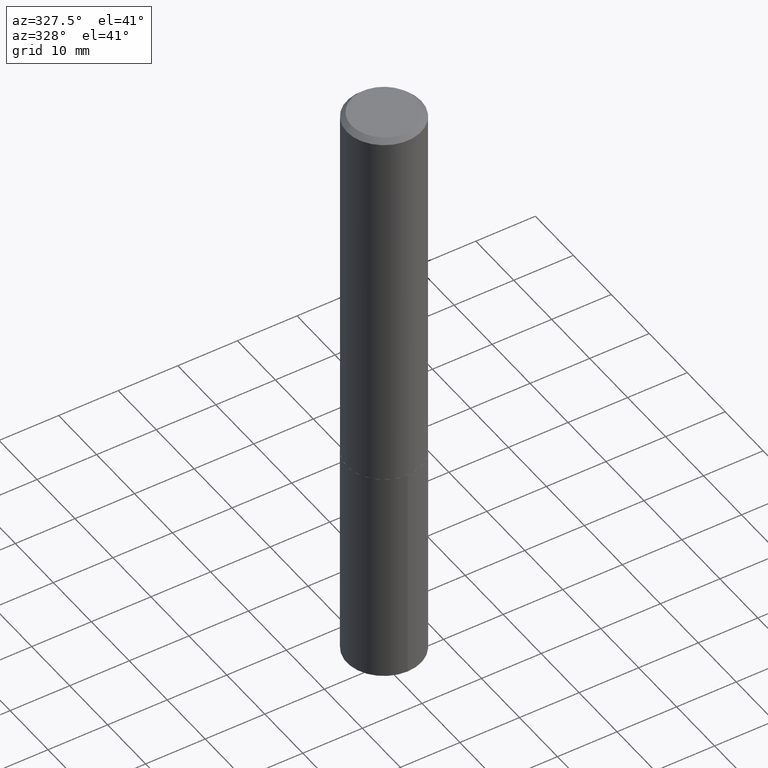
[diagram: clean part render]
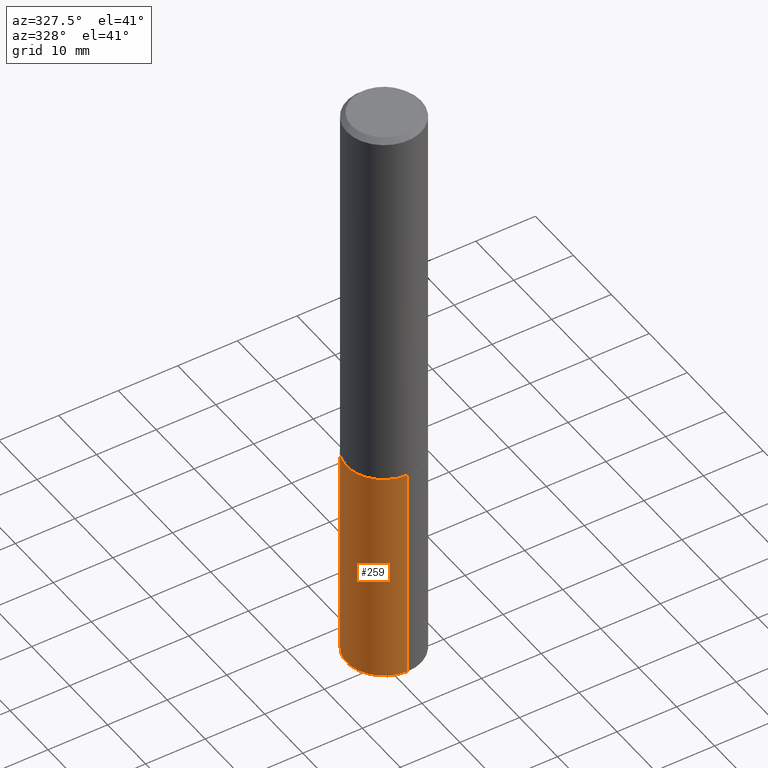
[diagram: same view with one face highlighted and labeled with its STEP entity id]
A machine part, auxiliary view. The second image highlights one B-rep face of the part: STEP entity #259.
In plain terms, the highlighted cylindrical surface (partial cylindrical patch) has radius 6.2497 mm, axis along (-0, 0, 1).
Its self-contained STEP definition (entity closure, byte-faithful):
#18 = CARTESIAN_POINT ( 'NONE',  ( 9.658659434360956272E-29, -1.379109997633285190E-14, -3.949771101202322665 ) ) ;
#26 = CIRCLE ( 'NONE', #319, 0.2460499999999999909 ) ;
#27 = VERTEX_POINT ( 'NONE', #327 ) ;
#38 = CARTESIAN_POINT ( 'NONE',  ( -1.718157966844644601E-15, -0.2460500000000087339, -2.499899999999999345 ) ) ;
#50 = DIRECTION ( 'NONE',  ( -2.445204930865101317E-29, 3.491859223320286804E-15, 1.000000000000000000 ) ) ;
#65 = AXIS2_PLACEMENT_3D ( 'NONE', #193, #384, #229 ) ;
#73 = VECTOR ( 'NONE', #131, 39.37007874015748143 ) ;
#74 = LINE ( 'NONE', #315, #73 ) ;
#76 = EDGE_CURVE ( 'NONE', #236, #202, #322, .T. ) ;
#77 = CYLINDRICAL_SURFACE ( 'NONE', #65, 0.2460499999999999909 ) ;
#78 = DIRECTION ( 'NONE',  ( -6.982962677686265922E-15, -1.000000000000000000, 4.441126589984577246E-15 ) ) ;
#86 = ORIENTED_EDGE ( 'NONE', *, *, #240, .T. ) ;
#110 = ORIENTED_EDGE ( 'NONE', *, *, #237, .F. ) ;
#114 = ORIENTED_EDGE ( 'NONE', *, *, #76, .F. ) ;
#131 = DIRECTION ( 'NONE',  ( -2.445204930865101317E-29, 3.491859223320287199E-15, 1.000000000000000000 ) ) ;
#140 = VERTEX_POINT ( 'NONE', #215 ) ;
#152 = AXIS2_PLACEMENT_3D ( 'NONE', #251, #368, #192 ) ;
#192 = DIRECTION ( 'NONE',  ( -6.982962677686265922E-15, -1.000000000000000000, 4.441126589984577246E-15 ) ) ;
#193 = CARTESIAN_POINT ( 'NONE',  ( 6.113427468582223828E-29, -8.728354198973981431E-15, -2.499900000000000233 ) ) ;
#201 = VECTOR ( 'NONE', #274, 39.37007874015748143 ) ;
#202 = VERTEX_POINT ( 'NONE', #38 ) ;
#215 = CARTESIAN_POINT ( 'NONE',  ( 1.748290401337823473E-15, 0.2460499999999862797, -3.949771101202323553 ) ) ;
#229 = DIRECTION ( 'NONE',  ( -6.982962677686265922E-15, -1.000000000000000000, 4.441126589984577246E-15 ) ) ;
#236 = VERTEX_POINT ( 'NONE', #338 ) ;
#237 = EDGE_CURVE ( 'NONE', #140, #236, #334, .T. ) ;
#240 = EDGE_CURVE ( 'NONE', #27, #202, #74, .T. ) ;
#251 = CARTESIAN_POINT ( 'NONE',  ( 6.113427468582223828E-29, -8.728354198973981431E-15, -2.499900000000000233 ) ) ;
#259 = ADVANCED_FACE ( 'NONE', ( #316 ), #77, .T. ) ;
#262 = ORIENTED_EDGE ( 'NONE', *, *, #291, .T. ) ;
#274 = DIRECTION ( 'NONE',  ( -2.445204930865101317E-29, 3.491859223320287199E-15, 1.000000000000000000 ) ) ;
#291 = EDGE_CURVE ( 'NONE', #140, #27, #26, .T. ) ;
#296 = EDGE_LOOP ( 'NONE', ( #110, #262, #86, #114 ) ) ;
#315 = CARTESIAN_POINT ( 'NONE',  ( -1.718157966844644601E-15, -0.2460500000000087339, -2.499899999999999345 ) ) ;
#316 = FACE_OUTER_BOUND ( 'NONE', #296, .T. ) ;
#319 = AXIS2_PLACEMENT_3D ( 'NONE', #18, #50, #78 ) ;
#322 = CIRCLE ( 'NONE', #152, 0.2460499999999999909 ) ;
#327 = CARTESIAN_POINT ( 'NONE',  ( -1.718157966844609497E-15, -0.2460500000000138687, -3.949771101202321777 ) ) ;
#334 = LINE ( 'NONE', #340, #201 ) ;
#338 = CARTESIAN_POINT ( 'NONE',  ( 1.748290401337823078E-15, 0.2460499999999912479, -2.499900000000001565 ) ) ;
#340 = CARTESIAN_POINT ( 'NONE',  ( 1.748290401337787382E-15, 0.2460499999999912479, -2.499900000000001565 ) ) ;
#368 = DIRECTION ( 'NONE',  ( -2.445204930865101317E-29, 3.491859223320286804E-15, 1.000000000000000000 ) ) ;
#384 = DIRECTION ( 'NONE',  ( -2.445204930865101317E-29, 3.491859223320286804E-15, 1.000000000000000000 ) ) ;